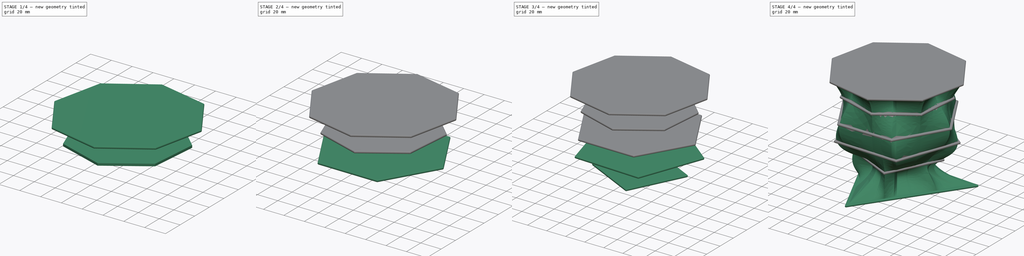
[diagram: build sequence overview — one tinted view per stage of 4, left to right]
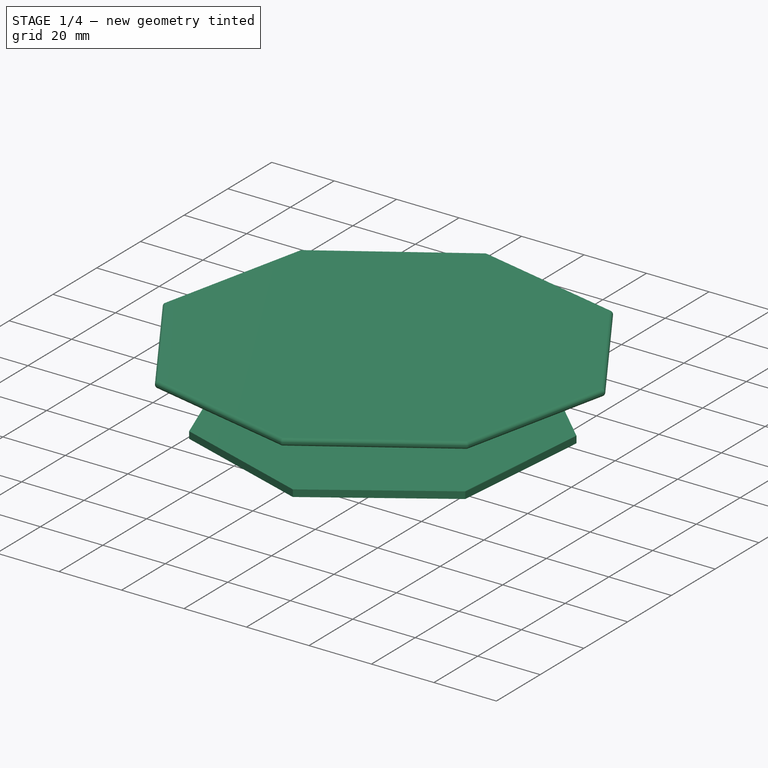
[diagram: stage 1 of 4 — iso view after this stage's code; geometry added in this stage tinted green]
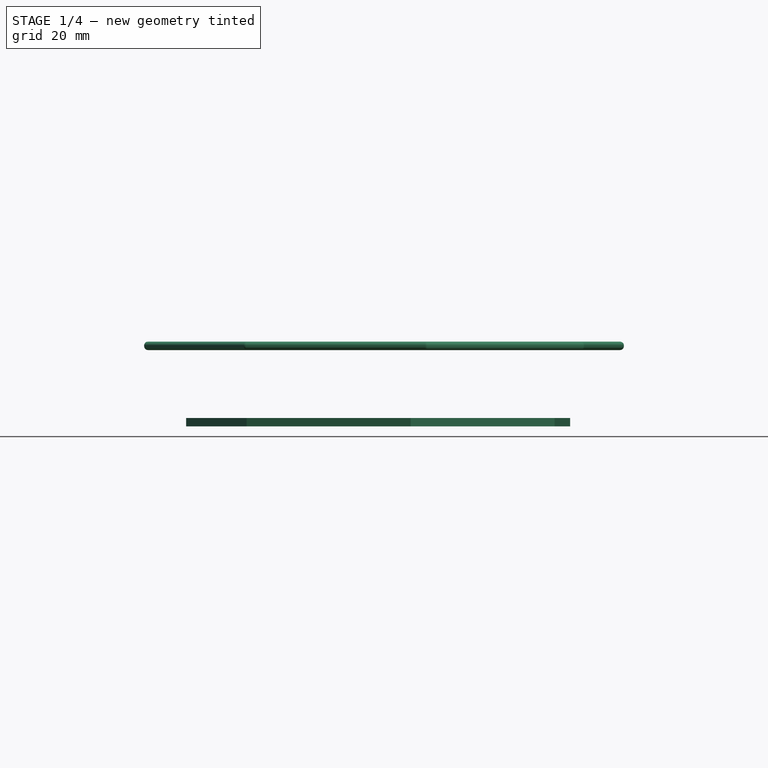
[diagram: stage 1 of 4 — front view after this stage's code; geometry added in this stage tinted green]
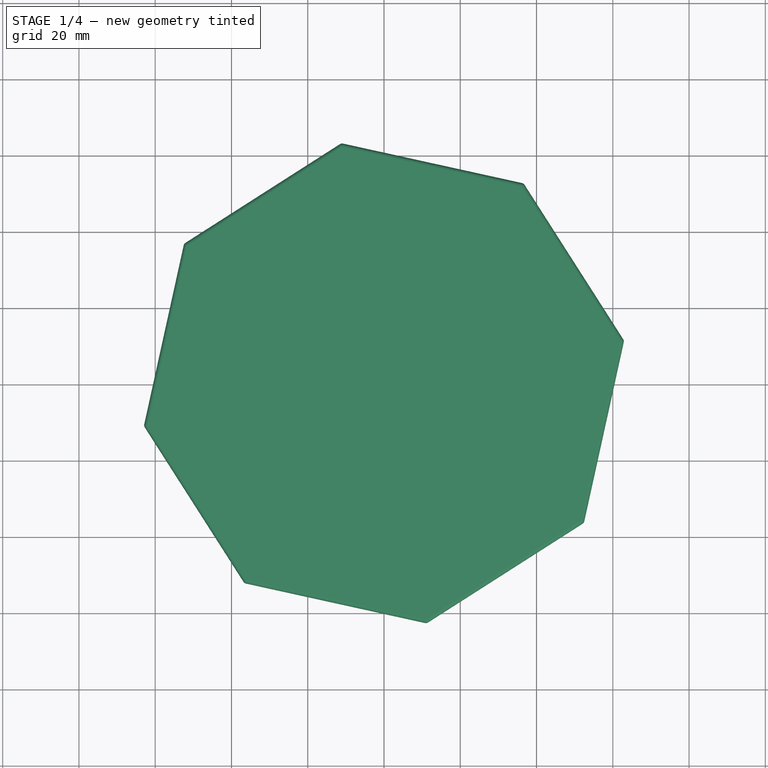
[diagram: stage 1 of 4 — top view after this stage's code; geometry added in this stage tinted green]
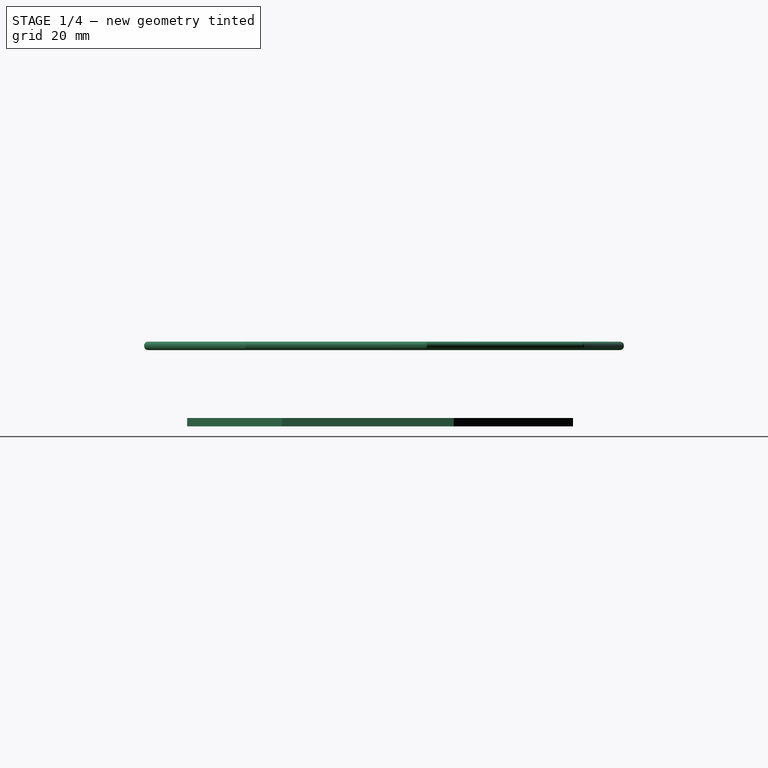
[diagram: stage 1 of 4 — right view after this stage's code; geometry added in this stage tinted green]
FCSTD DOCUMENT  (FreeCAD 0.16R6662 (Git))
Label: tri-oct-loft
License: All rights reserved
LicenseURL: http://en.wikipedia.org/wiki/All_rights_reserved
objects: Sketcher::SketchObject×12, PartDesign::Pad×6, Part::Fillet×6, Part::Loft×1
note: 31 computed .brp shape members not serialized (recipe doc carries the construction recipe); baked Part::Feature solids carry a one-line shape summary decoded from their .brp

FEATURE [Sketcher::SketchObject] Sketch006  label="dreieck001"
  Placement = pos=(0,0,-5) rot=(0,0,1;0rad)
  sketch-geometry (4):
    g0: LineSegment StartX=66.0719 StartY=30.9274 StartZ=0 EndX=-59.8199 EndY=41.7562 EndZ=0
    g1: LineSegment StartX=-59.8199 StartY=41.7562 StartZ=0 EndX=-6.25199 EndY=-72.6836 EndZ=0
    g2: LineSegment StartX=-6.25199 StartY=-72.6836 StartZ=0 EndX=66.0719 EndY=30.9274 EndZ=0
    g3: Circle [constr] CenterX=0 CenterY=0 CenterZ=0 NormalX=0 NormalY=0 NormalZ=1 Radius=72.952
  constraints (9):
    c: Coincident(g0,g1)
    c: Coincident(g1,g2)
    c: Coincident(g2,g0)
    c: Equal(g0,g1)
    c: Equal(g0,g2)
    c: PointOnObject(g0,g3)
    c: PointOnObject(g1,g3)
    c: PointOnObject(g2,g3)
    c: Coincident(g3,g-1)
FEATURE [Sketcher::SketchObject] Sketch007  label="quadrat001"
  Placement = pos=(0,0,20) rot=(0,0,1;0rad)
  sketch-geometry (5):
    g0: LineSegment StartX=13.7206 StartY=-41 StartZ=0 EndX=41 EndY=13.7206 EndZ=0
    g1: LineSegment StartX=41 StartY=13.7206 StartZ=0 EndX=-13.7206 EndY=41 EndZ=0
    g2: LineSegment StartX=-13.7206 StartY=41 StartZ=0 EndX=-41 EndY=-13.7206 EndZ=0
    g3: LineSegment StartX=-41 StartY=-13.7206 StartZ=0 EndX=13.7206 EndY=-41 EndZ=0
    g4: Circle [constr] CenterX=0 CenterY=0 CenterZ=0 NormalX=0 NormalY=0 NormalZ=1 Radius=43.2349
  constraints (12):
    c: Coincident(g0,g1)
    c: Coincident(g1,g2)
    c: Coincident(g2,g3)
    c: Coincident(g3,g0)
    c: Equal(g0,g1)
    c: Equal(g0,g2)
    c: Equal(g0,g3)
    c: PointOnObject(g0,g4)
    c: PointOnObject(g1,g4)
    c: PointOnObject(g2,g4)
    c: PointOnObject(g3,g4)
    c: Coincident(g4,g-1)
FEATURE [Sketcher::SketchObject] Sketch008  label="fuenfeck001"
  Placement = pos=(0,0,40) rot=(0,0,1;0rad)
  sketch-geometry (6):
    g0: LineSegment StartX=32.4624 StartY=-48.9958 StartZ=0 EndX=56.6292 EndY=15.7331 EndZ=0
    g1: LineSegment StartX=56.6292 StartY=15.7331 StartZ=0 EndX=2.53637 EndY=58.7194 EndZ=0
    g2: LineSegment StartX=2.53637 StartY=58.7194 StartZ=0 EndX=-55.0617 EndY=20.5575 EndZ=0
    g3: LineSegment StartX=-55.0617 StartY=20.5575 StartZ=0 EndX=-36.5663 EndY=-46.0141 EndZ=0
    g4: LineSegment StartX=-36.5663 StartY=-46.0141 StartZ=0 EndX=32.4624 EndY=-48.9958 EndZ=0
    g5: Circle [constr] CenterX=0 CenterY=0 CenterZ=0 NormalX=0 NormalY=0 NormalZ=1 Radius=58.7741
  constraints (12):
    c: Coincident(g0,g1)
    c: Coincident(g1,g2)
    c: Coincident(g2,g3)
    c: Coincident(g3,g4)
    c: Coincident(g4,g0)
    c: Equal(g0, g1-g4) x4
    c: PointOnObject(g0,g5)
    c: PointOnObject(g1,g5)
    c: PointOnObject(g2,g5)
    c: PointOnObject(g3,g5)
    c: PointOnObject(g4,g5)
    c: Coincident(g5,g-1)
FEATURE [Sketcher::SketchObject] Sketch009  label="sechseck001"
  Placement = pos=(0,0,60) rot=(0,0,1;0rad)
  sketch-geometry (7):
    g0: LineSegment StartX=29 StartY=-51 StartZ=0 EndX=58.6673 EndY=-0.385263 EndZ=0
    g1: LineSegment StartX=58.6673 StartY=-0.385263 StartZ=0 EndX=29.6673 EndY=50.6147 EndZ=0
    g2: LineSegment StartX=29.6673 StartY=50.6147 StartZ=0 EndX=-29 EndY=51 EndZ=0
    g3: LineSegment StartX=-29 StartY=51 StartZ=0 EndX=-58.6673 EndY=0.385263 EndZ=0
    g4: LineSegment StartX=-58.6673 StartY=0.385263 StartZ=0 EndX=-29.6673 EndY=-50.6147 EndZ=0
    g5: LineSegment StartX=-29.6673 StartY=-50.6147 StartZ=0 EndX=29 EndY=-51 EndZ=0
    g6: Circle [constr] CenterX=0 CenterY=0 CenterZ=0 NormalX=0 NormalY=0 NormalZ=1 Radius=58.6686
  constraints (14):
    c: Coincident(g0,g1)
    c: Coincident(g1,g2)
    c: Coincident(g2,g3)
    c: Coincident(g3,g4)
    c: Coincident(g4,g5)
    c: Coincident(g5,g0)
    c: Equal(g0, g1-g5) x5
    c: PointOnObject(g0,g6)
    c: PointOnObject(g1,g6)
    c: PointOnObject(g2,g6)
    c: PointOnObject(g3,g6)
    c: PointOnObject(g4,g6)
    c: PointOnObject(g5,g6)
    c: Coincident(g6,g-1)
FEATURE [Sketcher::SketchObject] Sketch010  label="siebeneck001"
  Placement = pos=(0,0,80) rot=(0,0,1;0rad)
  sketch-geometry (8):
    g0: LineSegment StartX=44.7302 StartY=-26.7391 StartZ=0 EndX=48.7943 EndY=18.2999 EndZ=0
    g1: LineSegment StartX=48.7943 StartY=18.2999 StartZ=0 EndX=16.1153 EndY=49.5587 EndZ=0
    g2: LineSegment StartX=16.1153 StartY=49.5587 StartZ=0 EndX=-28.6989 EndY=43.4988 EndZ=0
    g3: LineSegment StartX=-28.6989 StartY=43.4988 StartZ=0 EndX=-51.9022 EndY=4.6834 EndZ=0
    g4: LineSegment StartX=-51.9022 StartY=4.6834 StartZ=0 EndX=-36.0221 EndY=-37.6587 EndZ=0
    g5: LineSegment StartX=-36.0221 StartY=-37.6587 StartZ=0 EndX=6.98335 EndY=-51.643 EndZ=0
    g6: LineSegment StartX=6.98335 StartY=-51.643 StartZ=0 EndX=44.7302 EndY=-26.7391 EndZ=0
    g7: Circle [constr] CenterX=0 CenterY=0 CenterZ=0 NormalX=0 NormalY=0 NormalZ=1 Radius=52.1131
  constraints (16):
    c: Coincident(g0,g1)
    c: Coincident(g1,g2)
    c: Coincident(g2,g3)
    c: Coincident(g3,g4)
    c: Coincident(g4,g5)
    c: Coincident(g5,g6)
    c: Coincident(g6,g0)
    c: Equal(g0, g1-g6) x6
    c: PointOnObject(g0,g7)
    c: PointOnObject(g1,g7)
    c: PointOnObject(g2,g7)
    c: PointOnObject(g3,g7)
    c: PointOnObject(g4,g7)
    c: PointOnObject(g5,g7)
    c: PointOnObject(g6,g7)
    c: Coincident(g7,g-1)
FEATURE [Sketcher::SketchObject] Sketch011
  Placement = pos=(0,0,100) rot=(0,0,1;0rad)
  sketch-geometry (9):
    g0: LineSegment StartX=52.4336 StartY=-36.6151 StartZ=0 EndX=62.9669 EndY=11.1854 EndZ=0
    g1: LineSegment StartX=62.9669 StartY=11.1854 StartZ=0 EndX=36.6151 EndY=52.4336 EndZ=0
    g2: LineSegment StartX=36.6151 StartY=52.4336 StartZ=0 EndX=-11.1854 EndY=62.9669 EndZ=0
    g3: LineSegment StartX=-11.1854 StartY=62.9669 StartZ=0 EndX=-52.4336 EndY=36.6151 EndZ=0
    g4: LineSegment StartX=-52.4336 StartY=36.6151 StartZ=0 EndX=-62.9669 EndY=-11.1854 EndZ=0
    g5: LineSegment StartX=-62.9669 StartY=-11.1854 StartZ=0 EndX=-36.6151 EndY=-52.4336 EndZ=0
    g6: LineSegment StartX=-36.6151 StartY=-52.4336 StartZ=0 EndX=11.1854 EndY=-62.9669 EndZ=0
    g7: LineSegment StartX=11.1854 StartY=-62.9669 StartZ=0 EndX=52.4336 EndY=-36.6151 EndZ=0
    g8: Circle [constr] CenterX=0 CenterY=0 CenterZ=0 NormalX=0 NormalY=0 NormalZ=1 Radius=63.9527
  constraints (18):
    c: Coincident(g0,g1)
    c: Coincident(g1,g2)
    c: Coincident(g2,g3)
    c: Coincident(g3,g4)
    c: Coincident(g4,g5)
    c: Coincident(g5,g6)
    c: Coincident(g6,g7)
    c: Coincident(g7,g0)
    c: Equal(g0, g1-g7) x7
    c: PointOnObject(g0,g8)
    c: PointOnObject(g1,g8)
    c: PointOnObject(g2,g8)
    c: PointOnObject(g3,g8)
    c: PointOnObject(g4,g8)
    c: PointOnObject(g5,g8)
    c: PointOnObject(g6,g8)
    c: PointOnObject(g7,g8)
    c: Coincident(g8,g-1)
FEATURE [PartDesign::Pad] Pad  label="Pad8"
  Length = 2.2
  Length2 = 100
  Midplane = true
  Placement = pos=(0,0,100) rot=(0,0,1;0rad)
  Sketch = -> Sketch011
  Type = 0
FEATURE [PartDesign::Pad] Pad001  label="Pad7"
  Length = 2.2
  Length2 = 100
  Midplane = true
  Placement = pos=(0,0,80) rot=(0,0,1;0rad)
  Sketch = -> Sketch010
  Type = 0
FEATURE [Part::Fillet] Fillet005
  Base = -> Pad
  Edges = 24 edges r=1: [Edge1,Edge2,Edge3,Edge4,Edge5,Edge6,Edge7,Edge8,Edge9,Edge10,Edge11,Edge12,Edge13,Edge14,Edge15,Edge16,Edge17,Edge18,Edge19,Edge20,Edge21,Edge22,Edge23,Edge24]
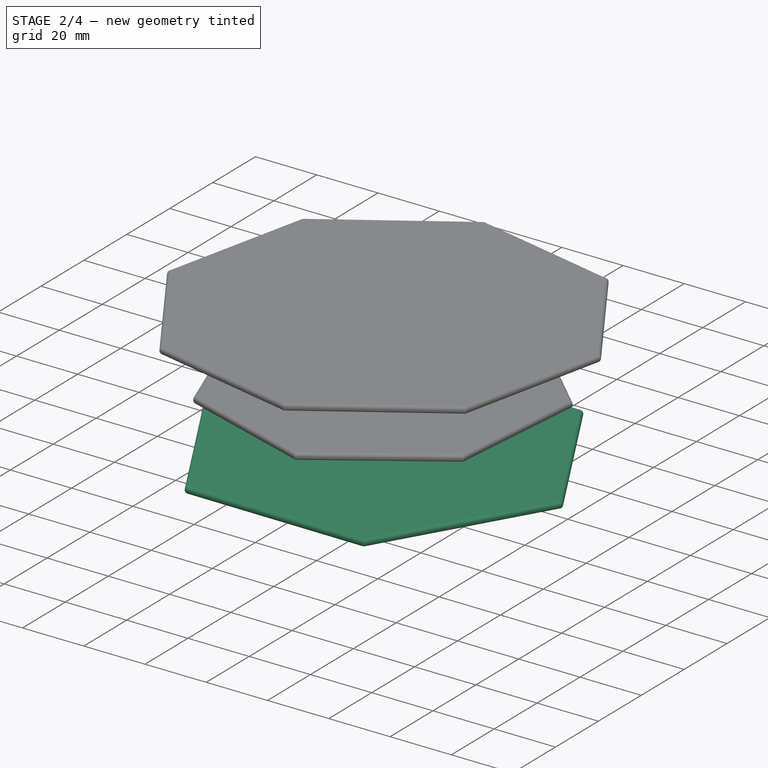
[diagram: stage 2 of 4 — iso view after this stage's code; geometry added in this stage tinted green]
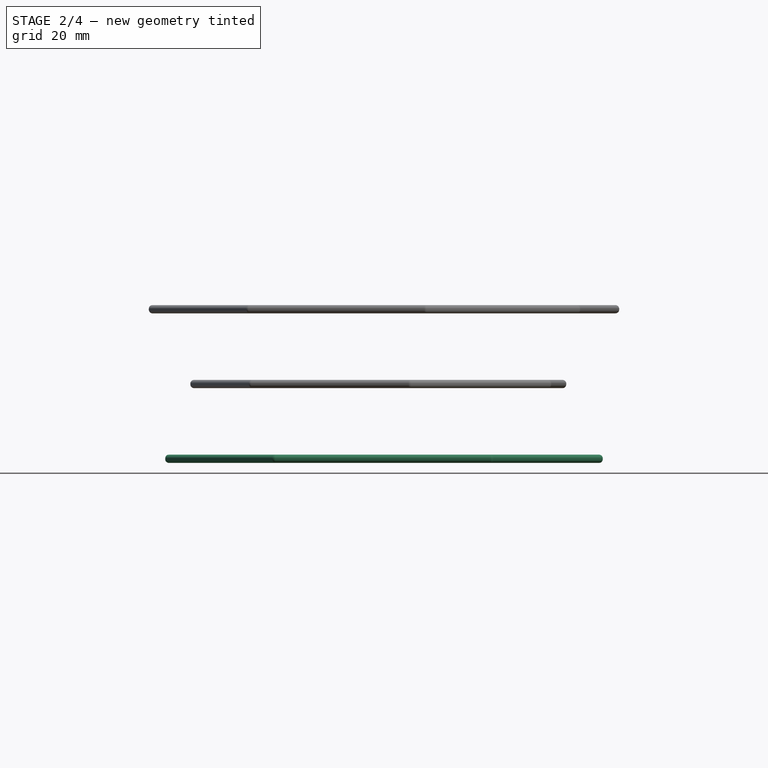
[diagram: stage 2 of 4 — front view after this stage's code; geometry added in this stage tinted green]
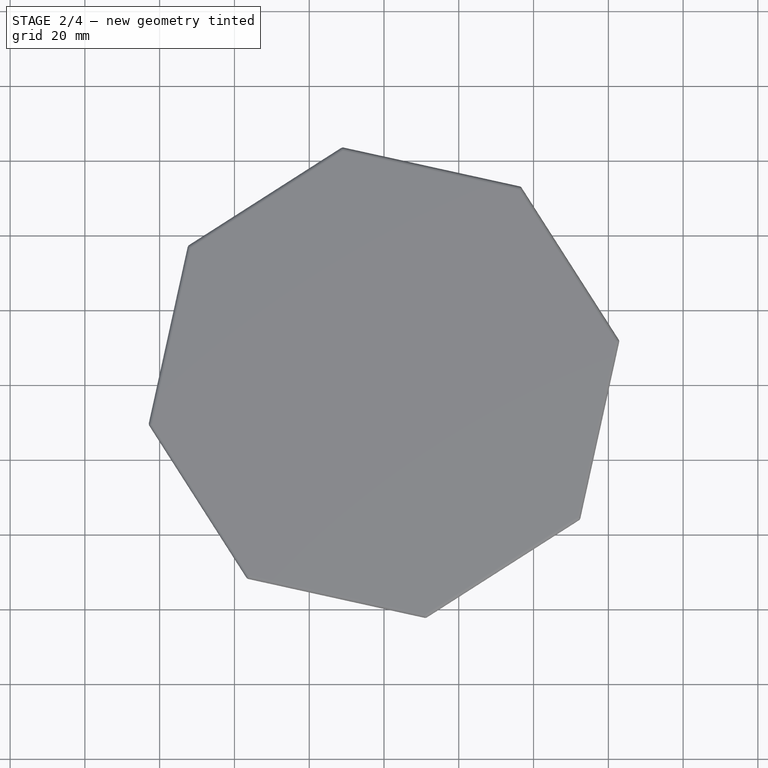
[diagram: stage 2 of 4 — top view after this stage's code; geometry added in this stage tinted green]
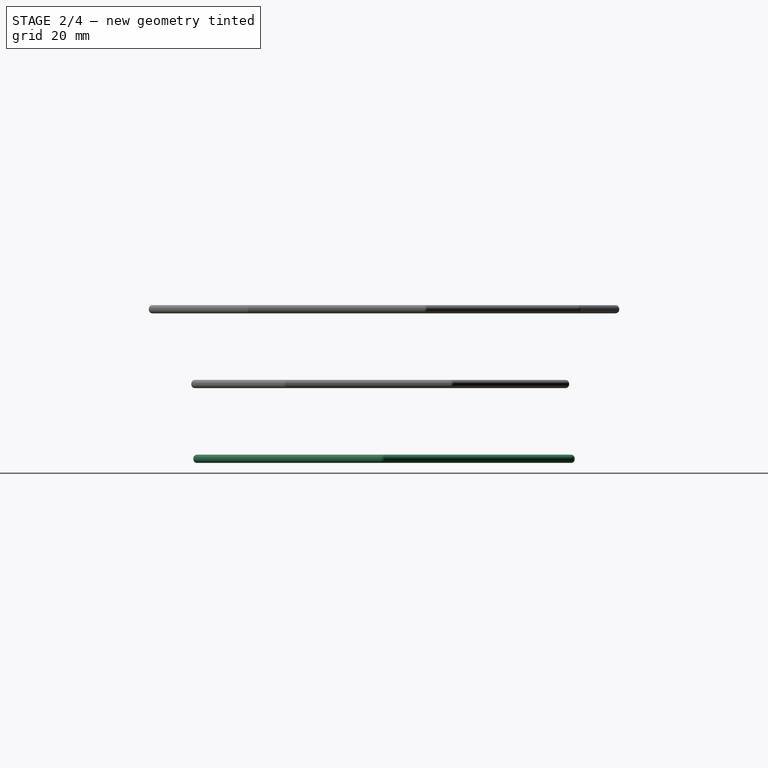
[diagram: stage 2 of 4 — right view after this stage's code; geometry added in this stage tinted green]
FEATURE [PartDesign::Pad] Pad002  label="Pad6"
  Length = 2.2
  Length2 = 100
  Midplane = true
  Placement = pos=(0,0,60) rot=(0,0,1;0rad)
  Sketch = -> Sketch009
  Type = 0
FEATURE [Part::Fillet] Fillet003
  Base = -> Pad002
  Edges = 18 edges r=1: [Edge1,Edge2,Edge3,Edge4,Edge5,Edge6,Edge7,Edge8,Edge9,Edge10,Edge11,Edge12,Edge13,Edge14,Edge15,Edge16,Edge17,Edge18]
FEATURE [Part::Fillet] Fillet004
  Base = -> Pad001
  Edges = 21 edges r=1: [Edge1,Edge2,Edge3,Edge4,Edge5,Edge6,Edge7,Edge8,Edge9,Edge10,Edge11,Edge12,Edge13,Edge14,Edge15,Edge16,Edge17,Edge18,Edge19,Edge20,Edge21]
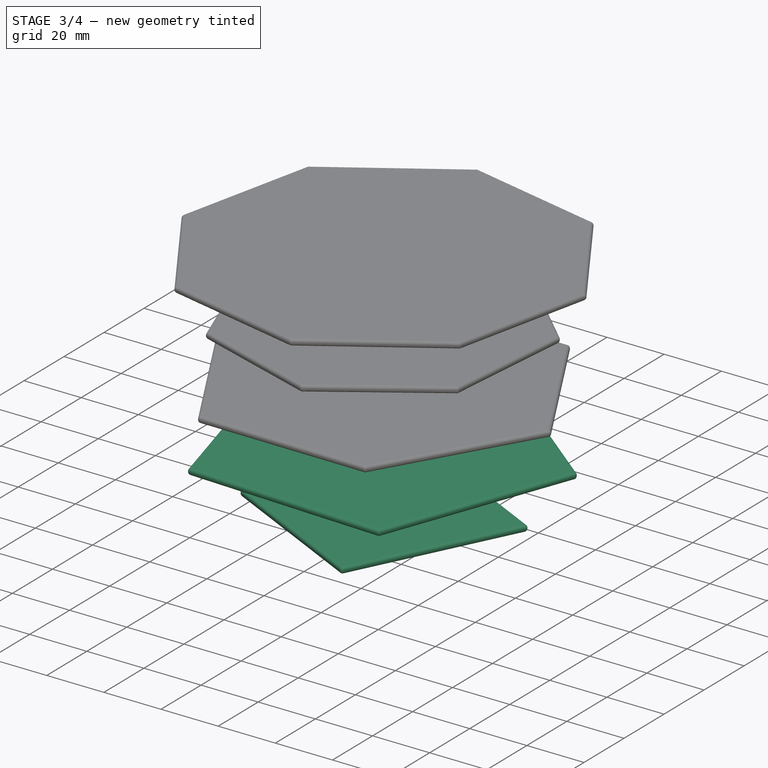
[diagram: stage 3 of 4 — iso view after this stage's code; geometry added in this stage tinted green]
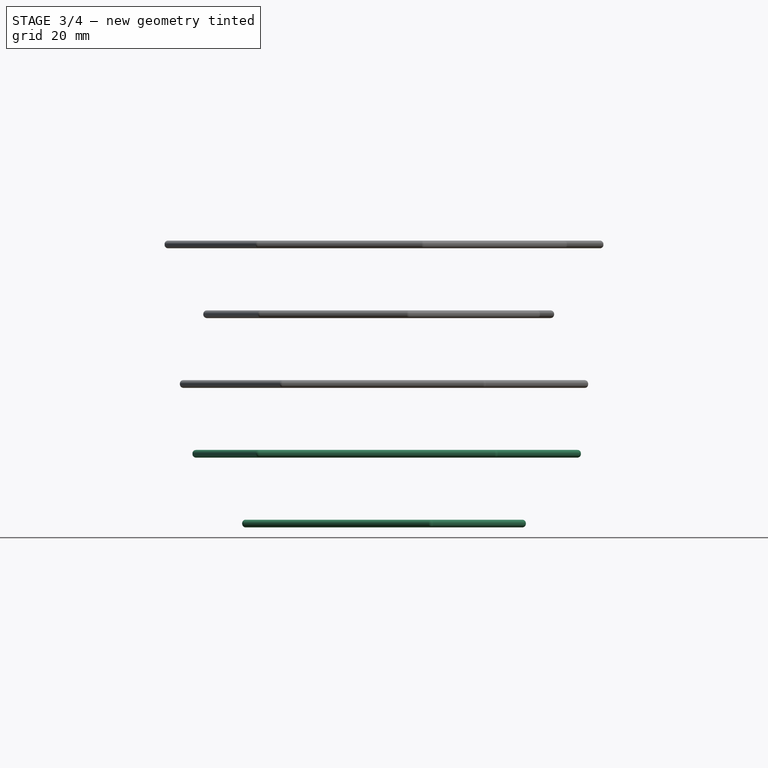
[diagram: stage 3 of 4 — front view after this stage's code; geometry added in this stage tinted green]
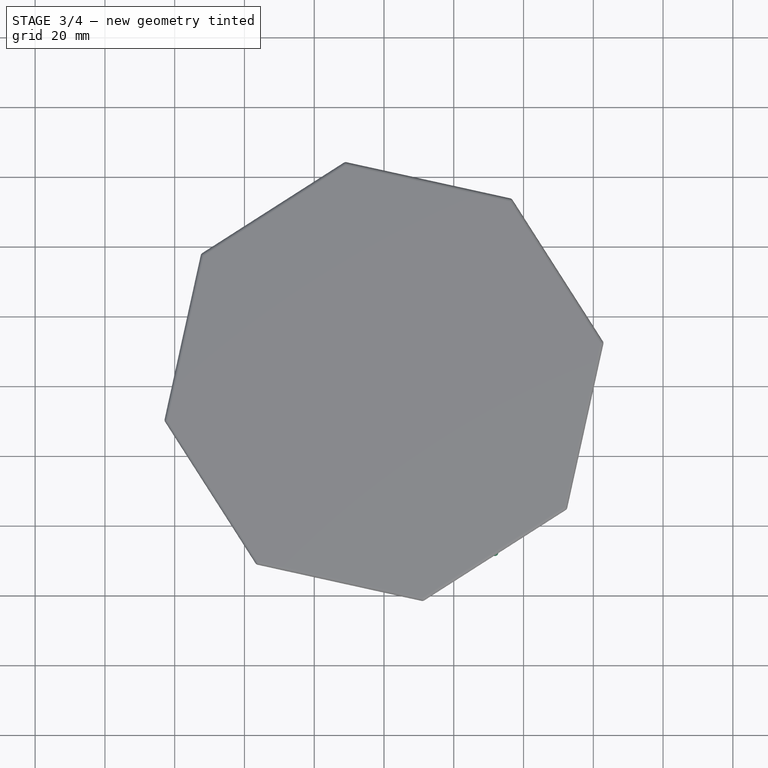
[diagram: stage 3 of 4 — top view after this stage's code; geometry added in this stage tinted green]
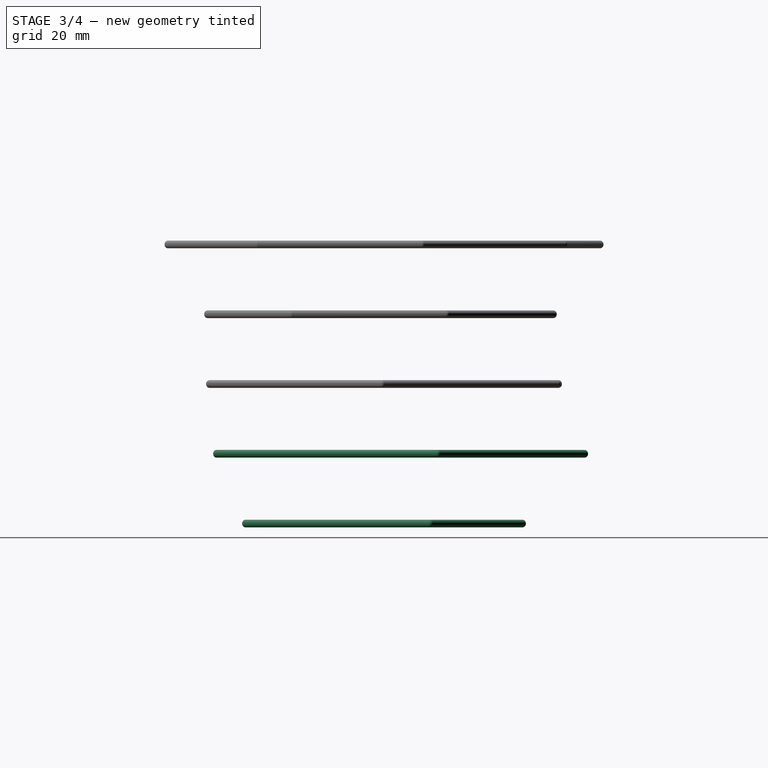
[diagram: stage 3 of 4 — right view after this stage's code; geometry added in this stage tinted green]
FEATURE [PartDesign::Pad] Pad003  label="Pad5"
  Length = 2.2
  Length2 = 100
  Midplane = true
  Placement = pos=(0,0,40) rot=(0,0,1;0rad)
  Sketch = -> Sketch008
  Type = 0
FEATURE [PartDesign::Pad] Pad004  label="Pad4"
  Length = 2.2
  Length2 = 100
  Midplane = true
  Placement = pos=(0,0,20) rot=(0,0,1;0rad)
  Sketch = -> Sketch007
  Type = 0
FEATURE [Part::Fillet] Fillet001
  Base = -> Pad004
  Edges = 12 edges r=1: [Edge1,Edge2,Edge3,Edge4,Edge5,Edge6,Edge7,Edge8,Edge9,Edge10,Edge11,Edge12]
FEATURE [Part::Fillet] Fillet002
  Base = -> Pad003
  Edges = 15 edges r=1: [Edge1,Edge2,Edge3,Edge4,Edge5,Edge6,Edge7,Edge8,Edge9,Edge10,Edge11,Edge12,Edge13,Edge14,Edge15]
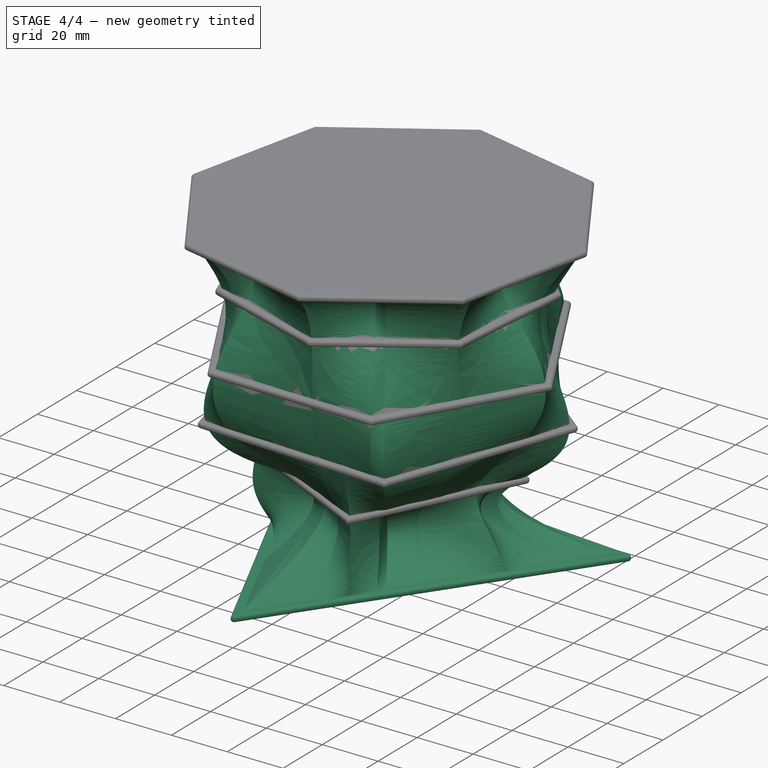
[diagram: stage 4 of 4 — iso view after this stage's code; geometry added in this stage tinted green]
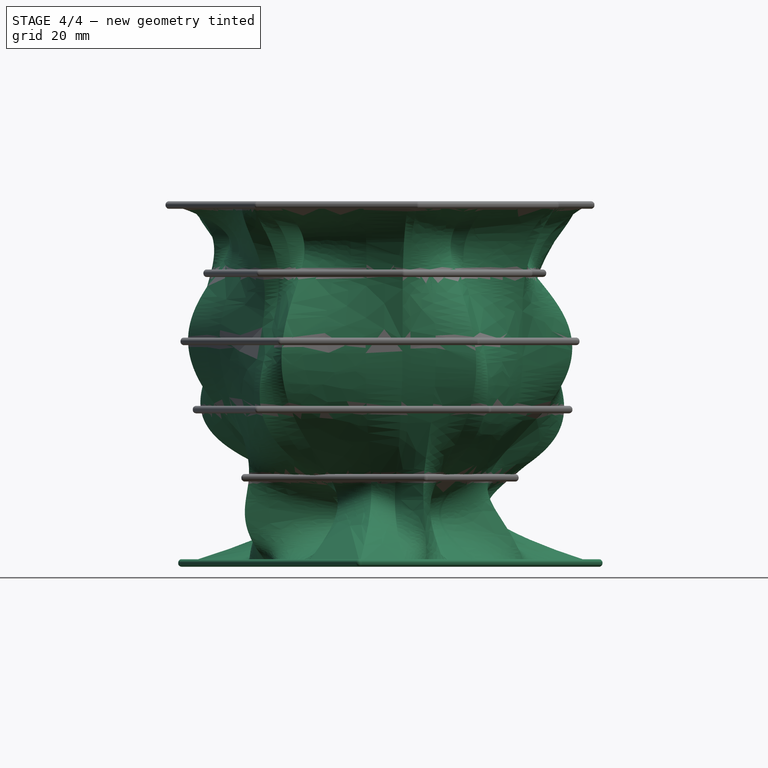
[diagram: stage 4 of 4 — front view after this stage's code; geometry added in this stage tinted green]
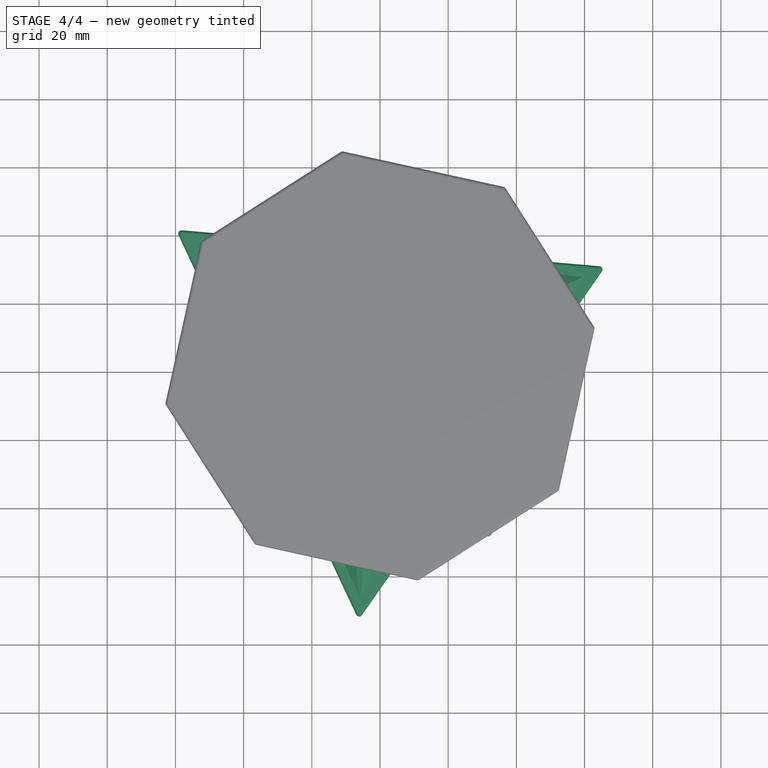
[diagram: stage 4 of 4 — top view after this stage's code; geometry added in this stage tinted green]
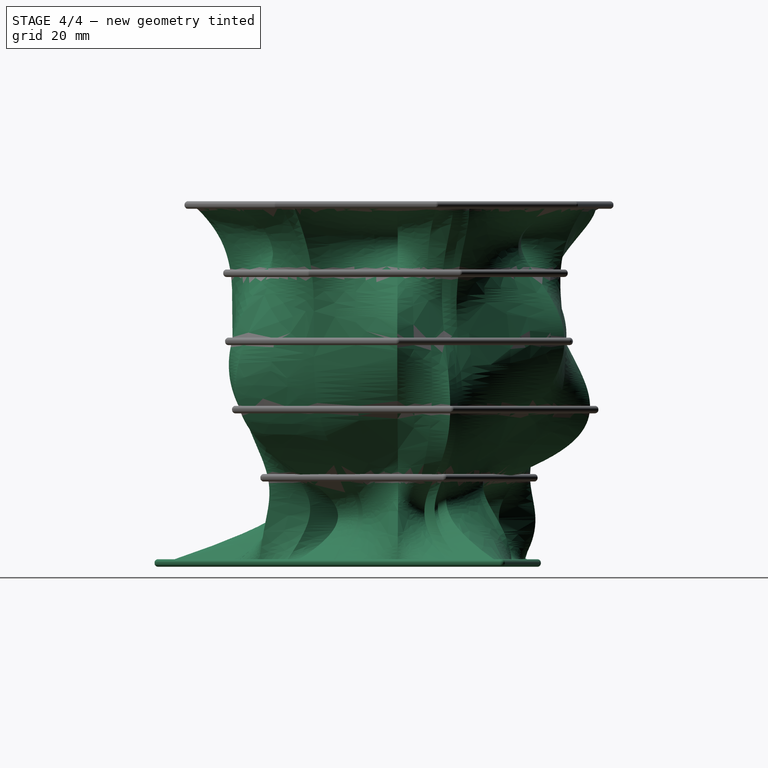
[diagram: stage 4 of 4 — right view after this stage's code; geometry added in this stage tinted green]
FEATURE [Sketcher::SketchObject] Sketch  label="dreieck"
  Placement = pos=(0,0,-5) rot=(0,0,1;0rad)
  sketch-geometry (4):
    g0: LineSegment StartX=62.6512 StartY=29.3281 StartZ=0 EndX=-56.7244 EndY=39.5935 EndZ=0
    g1: LineSegment StartX=-56.7244 StartY=39.5935 StartZ=0 EndX=-5.92672 EndY=-68.9215 EndZ=0
    g2: LineSegment StartX=-5.92672 StartY=-68.9215 StartZ=0 EndX=62.6512 EndY=29.3281 EndZ=0
    g3: Circle [constr] CenterX=0 CenterY=0 CenterZ=0 NormalX=0 NormalY=0 NormalZ=1 Radius=69.1759
  constraints (9):
    c: Coincident(g0,g1)
    c: Coincident(g1,g2)
    c: Coincident(g2,g0)
    c: Equal(g0,g1)
    c: Equal(g0,g2)
    c: PointOnObject(g0,g3)
    c: PointOnObject(g1,g3)
    c: PointOnObject(g2,g3)
    c: Coincident(g3,g-1)
FEATURE [Sketcher::SketchObject] Sketch001  label="quadrat"
  Placement = pos=(0,0,20) rot=(0,0,1;0rad)
  sketch-geometry (5):
    g0: LineSegment StartX=12.8702 StartY=-38.4626 StartZ=0 EndX=38.4626 EndY=12.8702 EndZ=0
    g1: LineSegment StartX=38.4626 StartY=12.8702 StartZ=0 EndX=-12.8702 EndY=38.4626 EndZ=0
    g2: LineSegment StartX=-12.8702 StartY=38.4626 StartZ=0 EndX=-38.4626 EndY=-12.8702 EndZ=0
    g3: LineSegment StartX=-38.4626 StartY=-12.8702 StartZ=0 EndX=12.8702 EndY=-38.4626 EndZ=0
    g4: Circle [constr] CenterX=0 CenterY=0 CenterZ=0 NormalX=0 NormalY=0 NormalZ=1 Radius=40.5588
  constraints (12):
    c: Coincident(g0,g1)
    c: Coincident(g1,g2)
    c: Coincident(g2,g3)
    c: Coincident(g3,g0)
    c: Equal(g0,g1)
    c: Equal(g0,g2)
    c: Equal(g0,g3)
    c: PointOnObject(g0,g4)
    c: PointOnObject(g1,g4)
    c: PointOnObject(g2,g4)
    c: PointOnObject(g3,g4)
    c: Coincident(g4,g-1)
FEATURE [Sketcher::SketchObject] Sketch002  label="fuenfeck"
  Placement = pos=(0,0,40) rot=(0,0,1;0rad)
  sketch-geometry (6):
    g0: LineSegment StartX=30.9711 StartY=-46.718 StartZ=0 EndX=54.002 EndY=15.0186 EndZ=0
    g1: LineSegment StartX=54.002 StartY=15.0186 StartZ=0 EndX=2.40402 EndY=56 EndZ=0
    g2: LineSegment StartX=2.40402 StartY=56 StartZ=0 EndX=-52.5163 EndY=19.5913 EndZ=0
    g3: LineSegment StartX=-52.5163 StartY=19.5913 StartZ=0 EndX=-34.8609 EndY=-43.8919 EndZ=0
    g4: LineSegment StartX=-34.8609 StartY=-43.8919 StartZ=0 EndX=30.9711 EndY=-46.718 EndZ=0
    g5: Circle [constr] CenterX=0 CenterY=0 CenterZ=0 NormalX=0 NormalY=0 NormalZ=1 Radius=56.0516
  constraints (12):
    c: Coincident(g0,g1)
    c: Coincident(g1,g2)
    c: Coincident(g2,g3)
    c: Coincident(g3,g4)
    c: Coincident(g4,g0)
    c: Equal(g0, g1-g4) x4
    c: PointOnObject(g0,g5)
    c: PointOnObject(g1,g5)
    c: PointOnObject(g2,g5)
    c: PointOnObject(g3,g5)
    c: PointOnObject(g4,g5)
    c: Coincident(g5,g-1)
FEATURE [Sketcher::SketchObject] Sketch003  label="sechseck"
  Placement = pos=(0,0,60) rot=(0,0,1;0rad)
  sketch-geometry (7):
    g0: LineSegment StartX=27.7062 StartY=-49 StartZ=0 EndX=56.2884 EndY=-0.505714 EndZ=0
    g1: LineSegment StartX=56.2884 StartY=-0.505714 StartZ=0 EndX=28.5821 EndY=48.4943 EndZ=0
    g2: LineSegment StartX=28.5821 StartY=48.4943 StartZ=0 EndX=-27.7062 EndY=49 EndZ=0
    g3: LineSegment StartX=-27.7062 StartY=49 StartZ=0 EndX=-56.2884 EndY=0.505714 EndZ=0
    g4: LineSegment StartX=-56.2884 StartY=0.505714 StartZ=0 EndX=-28.5821 EndY=-48.4943 EndZ=0
    g5: LineSegment StartX=-28.5821 StartY=-48.4943 StartZ=0 EndX=27.7062 EndY=-49 EndZ=0
    g6: Circle [constr] CenterX=0 CenterY=0 CenterZ=0 NormalX=0 NormalY=0 NormalZ=1 Radius=56.2906
  constraints (14):
    c: Coincident(g0,g1)
    c: Coincident(g1,g2)
    c: Coincident(g2,g3)
    c: Coincident(g3,g4)
    c: Coincident(g4,g5)
    c: Coincident(g5,g0)
    c: Equal(g0, g1-g5) x5
    c: PointOnObject(g0,g6)
    c: PointOnObject(g1,g6)
    c: PointOnObject(g2,g6)
    c: PointOnObject(g3,g6)
    c: PointOnObject(g4,g6)
    c: PointOnObject(g5,g6)
    c: Coincident(g6,g-1)
FEATURE [Sketcher::SketchObject] Sketch004  label="siebeneck"
  Placement = pos=(0,0,80) rot=(0,0,1;0rad)
  sketch-geometry (8):
    g0: LineSegment StartX=42.7758 StartY=-25.5472 StartZ=0 EndX=46.6439 EndY=17.515 EndZ=0
    g1: LineSegment StartX=46.6439 StartY=17.515 StartZ=0 EndX=15.3882 EndY=47.3881 EndZ=0
    g2: LineSegment StartX=15.3882 StartY=47.3881 StartZ=0 EndX=-27.4551 EndY=41.577 EndZ=0
    g3: LineSegment StartX=-27.4551 StartY=41.577 StartZ=0 EndX=-49.6241 EndY=4.45754 EndZ=0
    g4: LineSegment StartX=-49.6241 StartY=4.45754 StartZ=0 EndX=-34.4252 EndY=-36.0185 EndZ=0
    g5: LineSegment StartX=-34.4252 StartY=-36.0185 StartZ=0 EndX=6.69663 EndY=-49.3719 EndZ=0
    g6: LineSegment StartX=6.69663 StartY=-49.3719 StartZ=0 EndX=42.7758 EndY=-25.5472 EndZ=0
    g7: Circle [constr] CenterX=0 CenterY=0 CenterZ=0 NormalX=0 NormalY=0 NormalZ=1 Radius=49.8239
  constraints (16):
    c: Coincident(g0,g1)
    c: Coincident(g1,g2)
    c: Coincident(g2,g3)
    c: Coincident(g3,g4)
    c: Coincident(g4,g5)
    c: Coincident(g5,g6)
    c: Coincident(g6,g0)
    c: Equal(g0, g1-g6) x6
    c: PointOnObject(g0,g7)
    c: PointOnObject(g1,g7)
    c: PointOnObject(g2,g7)
    c: PointOnObject(g3,g7)
    c: PointOnObject(g4,g7)
    c: PointOnObject(g5,g7)
    c: PointOnObject(g6,g7)
    c: Coincident(g7,g-1)
FEATURE [Sketcher::SketchObject] Sketch005
  Placement = pos=(0,0,100) rot=(0,0,1;0rad)
  sketch-geometry (9):
    g0: LineSegment StartX=50.9444 StartY=-35.1739 StartZ=0 EndX=60.8948 EndY=11.1515 EndZ=0
    g1: LineSegment StartX=60.8948 StartY=11.1515 StartZ=0 EndX=35.1739 EndY=50.9444 EndZ=0
    g2: LineSegment StartX=35.1739 StartY=50.9444 StartZ=0 EndX=-11.1515 EndY=60.8948 EndZ=0
    g3: LineSegment StartX=-11.1515 StartY=60.8948 StartZ=0 EndX=-50.9444 EndY=35.1739 EndZ=0
    g4: LineSegment StartX=-50.9444 StartY=35.1739 StartZ=0 EndX=-60.8948 EndY=-11.1515 EndZ=0
    g5: LineSegment StartX=-60.8948 StartY=-11.1515 StartZ=0 EndX=-35.1739 EndY=-50.9444 EndZ=0
    g6: LineSegment StartX=-35.1739 StartY=-50.9444 StartZ=0 EndX=11.1515 EndY=-60.8948 EndZ=0
    g7: LineSegment StartX=11.1515 StartY=-60.8948 StartZ=0 EndX=50.9444 EndY=-35.1739 EndZ=0
    g8: Circle [constr] CenterX=0 CenterY=0 CenterZ=0 NormalX=0 NormalY=0 NormalZ=1 Radius=61.9075
  constraints (18):
    c: Coincident(g0,g1)
    c: Coincident(g1,g2)
    c: Coincident(g2,g3)
    c: Coincident(g3,g4)
    c: Coincident(g4,g5)
    c: Coincident(g5,g6)
    c: Coincident(g6,g7)
    c: Coincident(g7,g0)
    c: Equal(g0, g1-g7) x7
    c: PointOnObject(g0,g8)
    c: PointOnObject(g1,g8)
    c: PointOnObject(g2,g8)
    c: PointOnObject(g3,g8)
    c: PointOnObject(g4,g8)
    c: PointOnObject(g5,g8)
    c: PointOnObject(g6,g8)
    c: PointOnObject(g7,g8)
    c: Coincident(g8,g-1)
FEATURE [Part::Loft] Loft
  Closed = false
  Ruled = false
  Sections = -> [Sketch,Sketch001,Sketch002,Sketch003,Sketch004,Sketch005]
  Solid = true
FEATURE [PartDesign::Pad] Pad005  label="Pad3"
  Length = 2.2
  Length2 = 100
  Midplane = true
  Placement = pos=(0,0,-5) rot=(0,0,1;0rad)
  Sketch = -> Sketch006
  Type = 0
FEATURE [Part::Fillet] Fillet
  Base = -> Pad005
  Edges = 9 edges r=1: [Edge1,Edge2,Edge3,Edge4,Edge5,Edge6,Edge7,Edge8,Edge9]
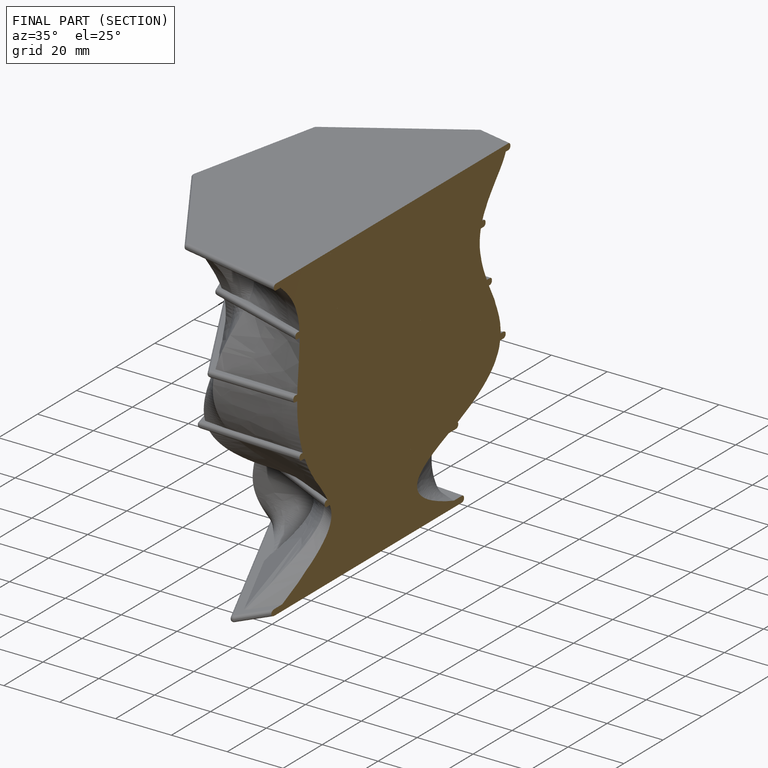
[diagram: finished part — half-section view (interior)]
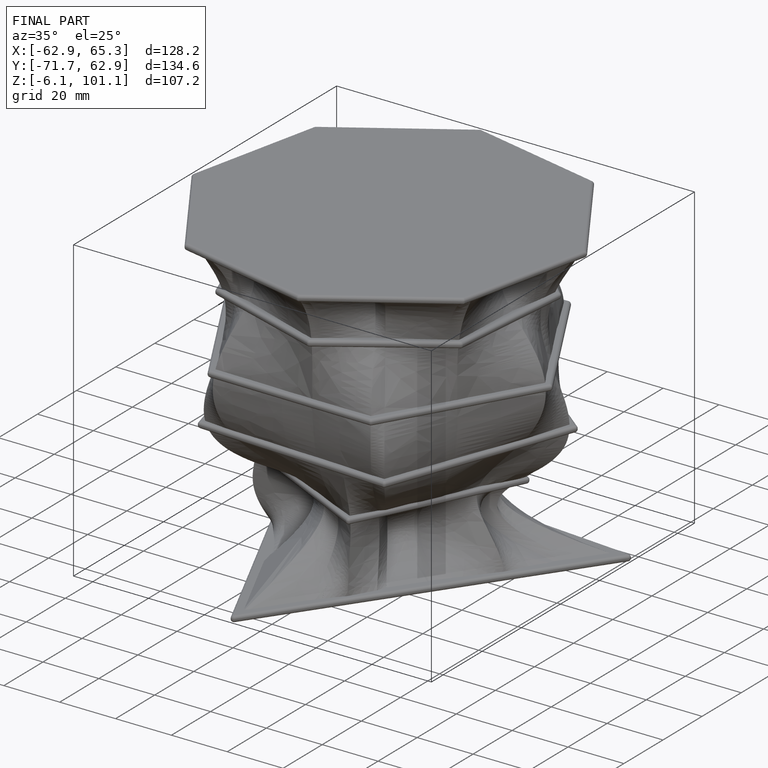
[diagram: finished part — iso view with bounding-box wireframe]
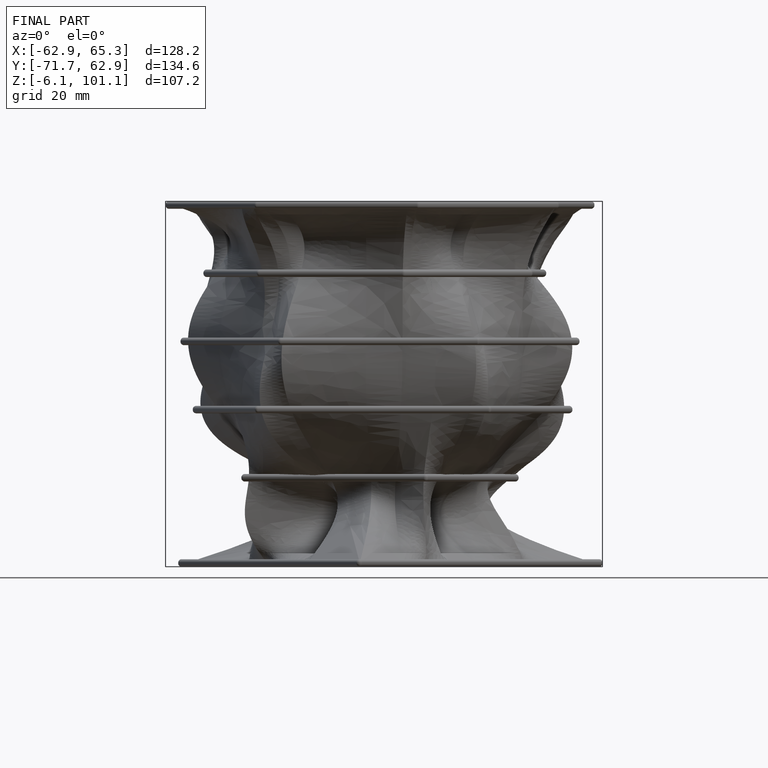
[diagram: finished part — front view with bounding-box wireframe]
